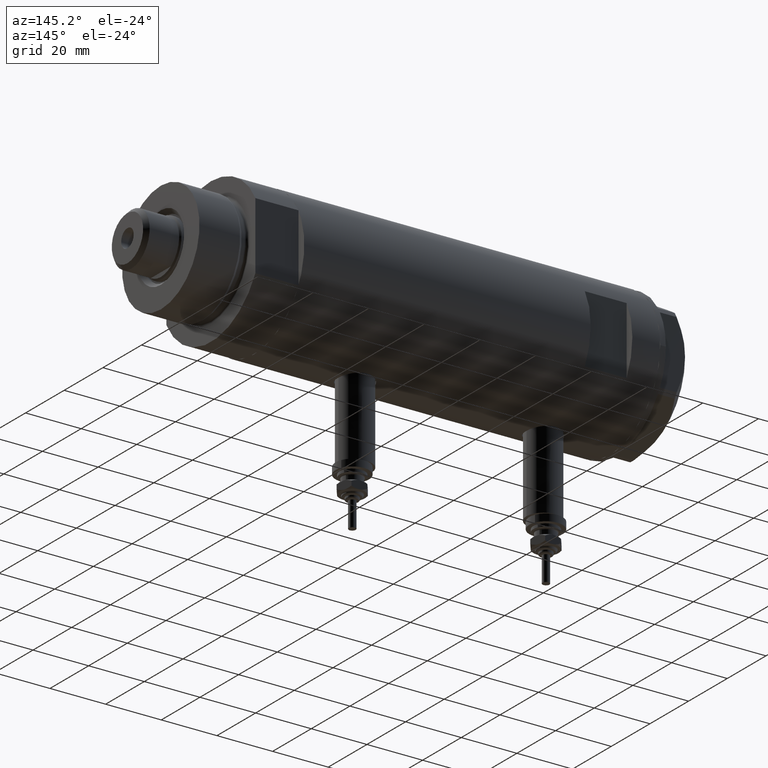
[diagram: clean part render]
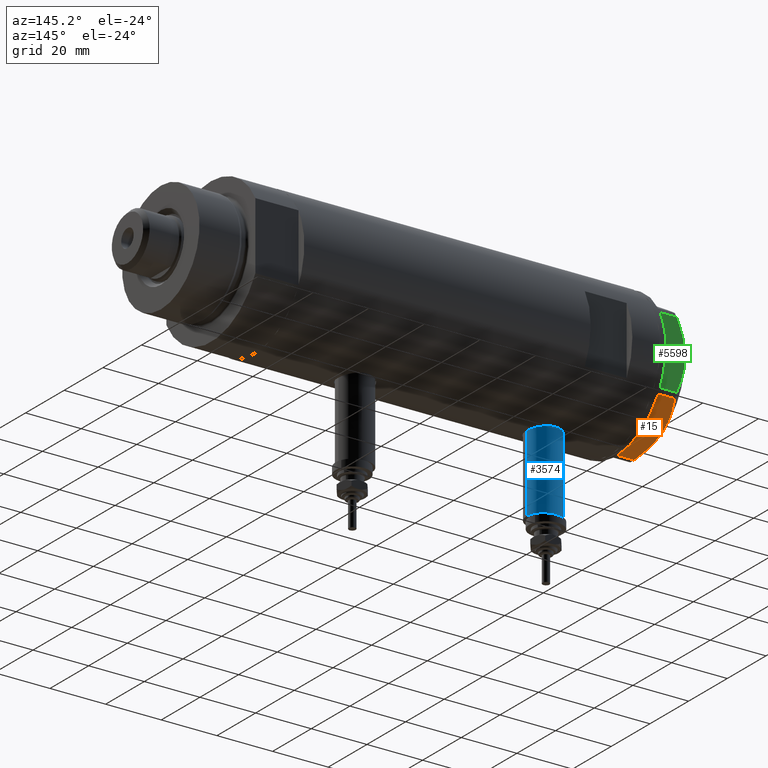
[diagram: same view with three faces highlighted in distinct colors, each labeled with its STEP entity id]
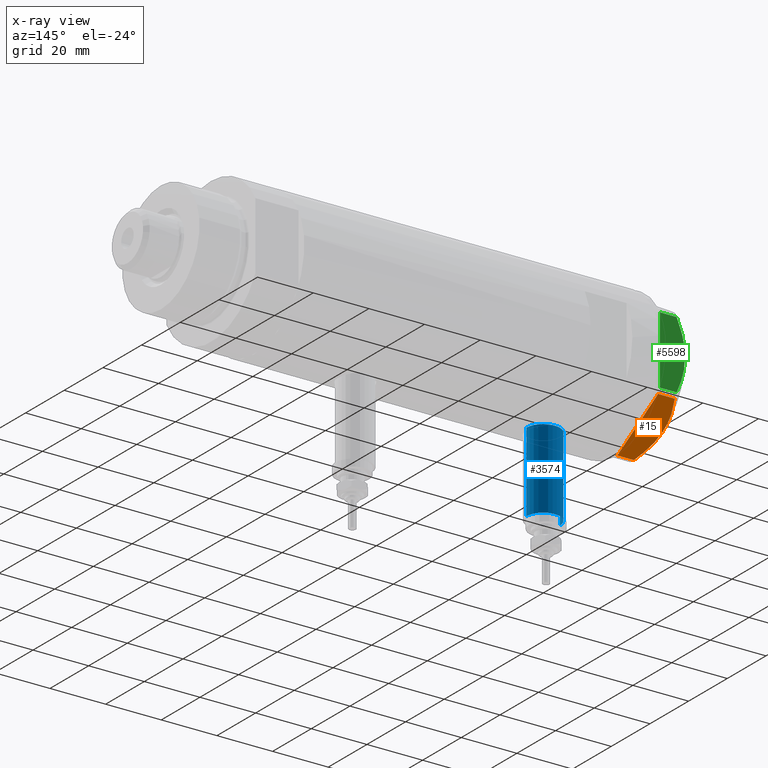
[diagram: x-ray of the same camera — body ghosted, the three highlighted faces saturated]
A machine part, auxiliary view with three faces highlighted in distinct colors.
The next image is the same camera in x-ray (body ghosted, the three faces saturated) — at least one of them is partly hidden behind the body in this view.
Their STEP definitions:

[orange] entity #15 — the highlighted planar face has unit normal (0, -0.5, 0.866).
#15 = ADVANCED_FACE ( 'NONE', ( #3933 ), #1091, .F. ) ;
#45 = CARTESIAN_POINT ( 'NONE',  ( 12.41906678023027588, 19.38796083407295967, 8.981686407609410949 ) ) ;
#71 = VERTEX_POINT ( 'NONE', #1645 ) ;
#114 = LINE ( 'NONE', #4555, #4247 ) ;
#132 = VECTOR ( 'NONE', #3441, 1000.000000000000000 ) ;
#374 = ORIENTED_EDGE ( 'NONE', *, *, #827, .F. ) ;
#384 = CARTESIAN_POINT ( 'NONE',  ( 21.99999999999987210, 13.85640646055121827, 0.000000000000000000 ) ) ;
#593 = CARTESIAN_POINT ( 'NONE',  ( 7.884645426989626671, 22.00591022298560517, 8.707651728476925257 ) ) ;
#650 = CARTESIAN_POINT ( 'NONE',  ( 9.678244919010086988, 20.97037507344920826, 9.000000000000001776 ) ) ;
#827 = EDGE_CURVE ( 'NONE', #71, #4374, #2561, .T. ) ;
#903 = VERTEX_POINT ( 'NONE', #384 ) ;
#1025 = CARTESIAN_POINT ( 'NONE',  ( 22.99999999999981171, 13.27905619136164184, 9.000000000000000000 ) ) ;
#1091 = PLANE ( 'NONE',  #5349 ) ;
#1192 = DIRECTION ( 'NONE',  ( -0.8660254037844415942, 0.4999999999999949485, 0.000000000000000000 ) ) ;
#1196 = CARTESIAN_POINT ( 'NONE',  ( 3.925137811030050994, 24.29193301091819635, 7.397272853991373687 ) ) ;
#1197 = LINE ( 'NONE', #2643, #2993 ) ;
#1428 = CARTESIAN_POINT ( 'NONE',  ( 0.9699484522385816154, 25.99811238272274494, 0.000000000000000000 ) ) ;
#1448 = CARTESIAN_POINT ( 'NONE',  ( 18.67981377008996446, 15.77331687414937278, 7.629374868826049649 ) ) ;
#1569 = ORIENTED_EDGE ( 'NONE', *, *, #5960, .T. ) ;
#1645 = CARTESIAN_POINT ( 'NONE',  ( 11.49999999999990408, 19.91858428704219364, 9.000000000000000000 ) ) ;
#1716 = ORIENTED_EDGE ( 'NONE', *, *, #5358, .T. ) ;
#1925 = CARTESIAN_POINT ( 'NONE',  ( 11.95865151389051917, 19.65378171203322566, 9.000000000000005329 ) ) ;
#1948 = CARTESIAN_POINT ( 'NONE',  ( 22.03005154776138852, 13.83905619136154819, 5.983800287807532037 ) ) ;
#2008 = LINE ( 'NONE', #4465, #2484 ) ;
#2077 = VERTEX_POINT ( 'NONE', #1948 ) ;
#2106 = DIRECTION ( 'NONE',  ( -0.8660254037844415942, 0.4999999999999949485, 0.000000000000000000 ) ) ;
#2120 = LINE ( 'NONE', #6037, #5843 ) ;
#2178 = CARTESIAN_POINT ( 'NONE',  ( 1.799196345396824492, 25.51934588838292228, 6.431317509509382191 ) ) ;
#2339 = VERTEX_POINT ( 'NONE', #2818 ) ;
#2484 = VECTOR ( 'NONE', #2106, 999.9999999999998863 ) ;
#2489 = EDGE_CURVE ( 'NONE', #5829, #903, #114, .T. ) ;
#2561 = B_SPLINE_CURVE_WITH_KNOTS ( 'NONE', 3,
 ( #3084, #650, #593, #4487, #4008, #5019, #1196, #2610, #2178, #2667 ),
 .UNSPECIFIED., .F., .F.,
 ( 4, 2, 2, 2, 4 ),
 ( 0.01376519981810293489, 0.01998941321701561136, 0.02154546656674377961, 0.02310151991647194786, 0.02621362661592828783 ),
 .UNSPECIFIED. ) ;
#2610 = CARTESIAN_POINT ( 'NONE',  ( 2.640413878806739945, 25.03366871902167290, 6.844201024438365089 ) ) ;
#2643 = CARTESIAN_POINT ( 'NONE',  ( 0.9699484522385816154, 25.99811238272274494, 9.000000000000000000 ) ) ;
#2667 = CARTESIAN_POINT ( 'NONE',  ( 0.9699484522385767304, 25.99811238272274849, 5.983800287807627960 ) ) ;
#2818 = CARTESIAN_POINT ( 'NONE',  ( 0.9999999999999297229, 25.98076211353316722, 0.000000000000000000 ) ) ;
#2853 = B_SPLINE_CURVE_WITH_KNOTS ( 'NONE', 3,
 ( #4422, #5381, #1448, #2961, #3911, #3949, #4898, #45, #1925, #5894 ),
 .UNSPECIFIED., .F., .F.,
 ( 4, 2, 2, 2, 4 ),
 ( 0.001228959670438493522, 0.007497079744270714746, 0.01063113978118682655, 0.01219816979964488159, 0.01376519981810293489 ),
 .UNSPECIFIED. ) ;
#2961 = CARTESIAN_POINT ( 'NONE',  ( 16.05322244309623869, 17.28978008384030929, 8.426899937603700153 ) ) ;
#2993 = VECTOR ( 'NONE', #4094, 1000.000000000000000 ) ;
#3023 = LINE ( 'NONE', #4868, #132 ) ;
#3043 = DIRECTION ( 'NONE',  ( -0.4999999999999949485, -0.8660254037844415942, 0.000000000000000000 ) ) ;
#3084 = CARTESIAN_POINT ( 'NONE',  ( 11.49999999999990408, 19.91858428704219364, 9.000000000000000000 ) ) ;
#3290 = ORIENTED_EDGE ( 'NONE', *, *, #6293, .T. ) ;
#3441 = DIRECTION ( 'NONE',  ( 0.000000000000000000, 0.000000000000000000, -1.000000000000000000 ) ) ;
#3706 = VERTEX_POINT ( 'NONE', #1428 ) ;
#3911 = CARTESIAN_POINT ( 'NONE',  ( 15.16323225988329959, 17.80361615569442790, 8.637313967156861949 ) ) ;
#3933 = FACE_OUTER_BOUND ( 'NONE', #4307, .T. ) ;
#3949 = CARTESIAN_POINT ( 'NONE',  ( 13.80210138309697498, 18.58946543380931260, 8.852712638955710034 ) ) ;
#4008 = CARTESIAN_POINT ( 'NONE',  ( 5.229981517798067081, 23.53858114556529912, 7.892128867758392730 ) ) ;
#4089 = CARTESIAN_POINT ( 'NONE',  ( 0.9699484522385767304, 25.99811238272274849, 5.983800287807627960 ) ) ;
#4094 = DIRECTION ( 'NONE',  ( 0.000000000000000000, 0.000000000000000000, 1.000000000000000000 ) ) ;
#4183 = EDGE_CURVE ( 'NONE', #2077, #71, #2853, .T. ) ;
#4247 = VECTOR ( 'NONE', #5418, 999.9999999999998863 ) ;
#4307 = EDGE_LOOP ( 'NONE', ( #6266, #3290, #5099, #1716, #5430, #1569, #374 ) ) ;
#4374 = VERTEX_POINT ( 'NONE', #4089 ) ;
#4376 = EDGE_CURVE ( 'NONE', #2339, #3706, #2120, .T. ) ;
#4422 = CARTESIAN_POINT ( 'NONE',  ( 22.03005154776138852, 13.83905619136154819, 5.983800287807532037 ) ) ;
#4465 = CARTESIAN_POINT ( 'NONE',  ( 22.99999999999981171, 13.27905619136164184, 0.000000000000000000 ) ) ;
#4487 = CARTESIAN_POINT ( 'NONE',  ( 5.671686373602799591, 23.28356272816407824, 8.040681765829278405 ) ) ;
#4488 = CARTESIAN_POINT ( 'NONE',  ( 22.03005154776124286, 13.83905619136163168, 0.000000000000000000 ) ) ;
#4555 = CARTESIAN_POINT ( 'NONE',  ( 22.99999999999981171, 13.27905619136164184, 0.000000000000000000 ) ) ;
#4868 = CARTESIAN_POINT ( 'NONE',  ( 22.03005154776124286, 13.83905619136163168, 9.000000000000000000 ) ) ;
#4898 = CARTESIAN_POINT ( 'NONE',  ( 13.34348161667005073, 18.85424967941157703, 8.907842277728345692 ) ) ;
#4977 = DIRECTION ( 'NONE',  ( 0.8660254037844415942, -0.4999999999999949485, 0.000000000000000000 ) ) ;
#5019 = CARTESIAN_POINT ( 'NONE',  ( 4.357207709416038632, 24.04247733877631532, 7.570552255229681116 ) ) ;
#5099 = ORIENTED_EDGE ( 'NONE', *, *, #2489, .T. ) ;
#5349 = AXIS2_PLACEMENT_3D ( 'NONE', #1025, #3043, #4977 ) ;
#5358 = EDGE_CURVE ( 'NONE', #903, #2339, #2008, .T. ) ;
#5381 = CARTESIAN_POINT ( 'NONE',  ( 20.37350567916420019, 14.79546339452108050, 6.877782426143415506 ) ) ;
#5418 = DIRECTION ( 'NONE',  ( -0.8660254037844415942, 0.4999999999999949485, 0.000000000000000000 ) ) ;
#5430 = ORIENTED_EDGE ( 'NONE', *, *, #4376, .T. ) ;
#5829 = VERTEX_POINT ( 'NONE', #4488 ) ;
#5843 = VECTOR ( 'NONE', #1192, 999.9999999999998863 ) ;
#5894 = CARTESIAN_POINT ( 'NONE',  ( 11.49999999999990408, 19.91858428704219364, 9.000000000000000000 ) ) ;
#5960 = EDGE_CURVE ( 'NONE', #3706, #4374, #1197, .T. ) ;
#6037 = CARTESIAN_POINT ( 'NONE',  ( 22.99999999999981171, 13.27905619136164184, 0.000000000000000000 ) ) ;
#6266 = ORIENTED_EDGE ( 'NONE', *, *, #4183, .F. ) ;
#6293 = EDGE_CURVE ( 'NONE', #2077, #5829, #3023, .T. ) ;

[blue] entity #3574 — the highlighted cylindrical surface (edge-blend (fillet) strip) has radius 6 mm, axis along (0, 0, 1).
#70 = CARTESIAN_POINT ( 'NONE',  ( -24.80000000000000426, 0.000000000000000000, 33.95000000000000995 ) ) ;
#139 = VECTOR ( 'NONE', #956, 1000.000000000000000 ) ;
#141 = EDGE_CURVE ( 'NONE', #409, #4563, #4141, .T. ) ;
#270 = FACE_OUTER_BOUND ( 'NONE', #5875, .T. ) ;
#409 = VERTEX_POINT ( 'NONE', #5308 ) ;
#422 = CARTESIAN_POINT ( 'NONE',  ( -53.40000000000000568, 0.000000000000000000, 39.95000000000000284 ) ) ;
#720 = EDGE_CURVE ( 'NONE', #5284, #409, #3026, .T. ) ;
#956 = DIRECTION ( 'NONE',  ( 1.000000000000000000, -0.000000000000000000, -0.000000000000000000 ) ) ;
#1378 = VECTOR ( 'NONE', #3134, 1000.000000000000000 ) ;
#1662 = CARTESIAN_POINT ( 'NONE',  ( -24.80000000000000426, 0.000000000000000000, 39.95000000000000284 ) ) ;
#1683 = AXIS2_PLACEMENT_3D ( 'NONE', #422, #2388, #3628 ) ;
#2096 = CARTESIAN_POINT ( 'NONE',  ( -24.80000000000000426, 7.347880794884108889E-16, 45.95000000000000284 ) ) ;
#2227 = DIRECTION ( 'NONE',  ( 1.000000000000000000, -0.000000000000000000, -0.000000000000000000 ) ) ;
#2264 = ORIENTED_EDGE ( 'NONE', *, *, #4236, .T. ) ;
#2297 = CARTESIAN_POINT ( 'NONE',  ( -53.40000000000000568, 7.347880794884108889E-16, 45.95000000000000284 ) ) ;
#2384 = CIRCLE ( 'NONE', #5532, 5.999999999999998224 ) ;
#2388 = DIRECTION ( 'NONE',  ( -1.000000000000000000, 0.000000000000000000, 0.000000000000000000 ) ) ;
#2589 = DIRECTION ( 'NONE',  ( 0.000000000000000000, 0.000000000000000000, -1.000000000000000000 ) ) ;
#2715 = CARTESIAN_POINT ( 'NONE',  ( -53.40000000000000568, 0.000000000000000000, 39.95000000000000284 ) ) ;
#3026 = CIRCLE ( 'NONE', #1683, 5.999999999999998224 ) ;
#3075 = ORIENTED_EDGE ( 'NONE', *, *, #720, .F. ) ;
#3134 = DIRECTION ( 'NONE',  ( 1.000000000000000000, -0.000000000000000000, -0.000000000000000000 ) ) ;
#3574 = ADVANCED_FACE ( 'NONE', ( #270 ), #4648, .T. ) ;
#3590 = DIRECTION ( 'NONE',  ( 0.000000000000000000, 0.000000000000000000, 1.000000000000000000 ) ) ;
#3622 = DIRECTION ( 'NONE',  ( -1.000000000000000000, 0.000000000000000000, 0.000000000000000000 ) ) ;
#3628 = DIRECTION ( 'NONE',  ( 0.000000000000000000, 0.000000000000000000, 1.000000000000000000 ) ) ;
#3830 = LINE ( 'NONE', #6224, #139 ) ;
#4141 = LINE ( 'NONE', #4649, #1378 ) ;
#4236 = EDGE_CURVE ( 'NONE', #5918, #4563, #2384, .T. ) ;
#4563 = VERTEX_POINT ( 'NONE', #70 ) ;
#4648 = CYLINDRICAL_SURFACE ( 'NONE', #5427, 5.999999999999998224 ) ;
#4649 = CARTESIAN_POINT ( 'NONE',  ( -53.40000000000000568, 0.000000000000000000, 33.95000000000000995 ) ) ;
#4814 = ORIENTED_EDGE ( 'NONE', *, *, #141, .F. ) ;
#5177 = EDGE_CURVE ( 'NONE', #5284, #5918, #3830, .T. ) ;
#5200 = ORIENTED_EDGE ( 'NONE', *, *, #5177, .T. ) ;
#5284 = VERTEX_POINT ( 'NONE', #2297 ) ;
#5308 = CARTESIAN_POINT ( 'NONE',  ( -53.40000000000000568, 0.000000000000000000, 33.95000000000000995 ) ) ;
#5427 = AXIS2_PLACEMENT_3D ( 'NONE', #2715, #2227, #2589 ) ;
#5532 = AXIS2_PLACEMENT_3D ( 'NONE', #1662, #3622, #3590 ) ;
#5875 = EDGE_LOOP ( 'NONE', ( #3075, #5200, #2264, #4814 ) ) ;
#5918 = VERTEX_POINT ( 'NONE', #2096 ) ;
#6224 = CARTESIAN_POINT ( 'NONE',  ( -53.40000000000000568, 7.347880794884112834E-16, 45.95000000000000284 ) ) ;

[green] entity #5598 — the highlighted planar face has unit normal (0, -1, 0).
#146 = CARTESIAN_POINT ( 'NONE',  ( 22.99999999999997513, -2.122900714017905699, 9.000000000000095923 ) ) ;
#262 = CARTESIAN_POINT ( 'NONE',  ( 22.99999999999982592, 12.12435565298247653, 0.000000000000000000 ) ) ;
#324 = EDGE_CURVE ( 'NONE', #4682, #3139, #591, .T. ) ;
#337 = DIRECTION ( 'NONE',  ( -1.032024811306395780E-14, 1.000000000000000000, 0.000000000000000000 ) ) ;
#421 = CARTESIAN_POINT ( 'NONE',  ( 22.99999999999995026, 2.373657066004705010E-13, 9.000000000000000000 ) ) ;
#590 = CARTESIAN_POINT ( 'NONE',  ( 22.99999999999992184, 2.643615312305318099, 8.854304560636265364 ) ) ;
#591 = LINE ( 'NONE', #5923, #1885 ) ;
#648 = CARTESIAN_POINT ( 'NONE',  ( 22.99999999999983658, 10.22738952213810926, 6.832470313674774864 ) ) ;
#656 = CARTESIAN_POINT ( 'NONE',  ( 23.00000000000002132, -6.734330413511252722, 8.039389741252669808 ) ) ;
#749 = CARTESIAN_POINT ( 'NONE',  ( 23.00000000000008527, -13.27905619136115867, 9.000000000000000000 ) ) ;
#786 = B_SPLINE_CURVE_WITH_KNOTS ( 'NONE', 3,
 ( #5504, #1135, #4049, #5024, #3089, #1615, #656, #4522, #146, #3768 ),
 .UNSPECIFIED., .F., .F.,
 ( 4, 2, 2, 2, 4 ),
 ( 0.03516523594057417712, 0.03831677594541235687, 0.03989254594783144675, 0.04146831595025053663, 0.04777139595992689614 ),
 .UNSPECIFIED. ) ;
#899 = VERTEX_POINT ( 'NONE', #5656 ) ;
#954 = AXIS2_PLACEMENT_3D ( 'NONE', #749, #6024, #2709 ) ;
#1022 = VERTEX_POINT ( 'NONE', #6138 ) ;
#1135 = CARTESIAN_POINT ( 'NONE',  ( 23.00000000000006395, -11.20825071633898240, 6.428173306378455187 ) ) ;
#1215 = CARTESIAN_POINT ( 'NONE',  ( 22.99999999999984368, 11.20155944044832630, 6.421102682632754188 ) ) ;
#1372 = CARTESIAN_POINT ( 'NONE',  ( 23.00000000000008527, -13.27905619136115867, 0.000000000000000000 ) ) ;
#1463 = ORIENTED_EDGE ( 'NONE', *, *, #3270, .T. ) ;
#1507 = VERTEX_POINT ( 'NONE', #262 ) ;
#1579 = CARTESIAN_POINT ( 'NONE',  ( 22.99999999999990763, 4.203926054642127319, 8.641681223122510858 ) ) ;
#1615 = CARTESIAN_POINT ( 'NONE',  ( 23.00000000000002842, -7.239756182922028493, 7.892186063422852449 ) ) ;
#1675 = FACE_OUTER_BOUND ( 'NONE', #5798, .T. ) ;
#1697 = CARTESIAN_POINT ( 'NONE',  ( 22.99999999999982236, 12.15905619136164262, 5.983800287807618190 ) ) ;
#1847 = VECTOR ( 'NONE', #3304, 1000.000000000000000 ) ;
#1850 = EDGE_CURVE ( 'NONE', #3139, #1022, #2988, .T. ) ;
#1885 = VECTOR ( 'NONE', #3475, 1000.000000000000000 ) ;
#1895 = EDGE_CURVE ( 'NONE', #2806, #899, #3654, .T. ) ;
#2576 = CARTESIAN_POINT ( 'NONE',  ( 23.00000000000008527, -13.27905619136115867, 0.000000000000000000 ) ) ;
#2629 = CARTESIAN_POINT ( 'NONE',  ( 23.00000000000007461, -12.15905619136115412, 5.983800287807623519 ) ) ;
#2709 = DIRECTION ( 'NONE',  ( 1.032024811306395780E-14, -1.000000000000000000, 0.000000000000000000 ) ) ;
#2791 = LINE ( 'NONE', #3811, #1847 ) ;
#2806 = VERTEX_POINT ( 'NONE', #421 ) ;
#2822 = ORIENTED_EDGE ( 'NONE', *, *, #6069, .T. ) ;
#2963 = CARTESIAN_POINT ( 'NONE',  ( 22.99999999999993960, 1.063773509315896648, 8.981438083606837708 ) ) ;
#2988 = LINE ( 'NONE', #2576, #5868 ) ;
#2996 = VERTEX_POINT ( 'NONE', #5474 ) ;
#3082 = CARTESIAN_POINT ( 'NONE',  ( 22.99999999999986500, 8.252113629125430450, 7.581642062680224115 ) ) ;
#3089 = CARTESIAN_POINT ( 'NONE',  ( 23.00000000000003197, -8.246028007352183664, 7.571131808646910599 ) ) ;
#3139 = VERTEX_POINT ( 'NONE', #5054 ) ;
#3270 = EDGE_CURVE ( 'NONE', #1507, #2996, #2791, .T. ) ;
#3275 = LINE ( 'NONE', #4325, #3908 ) ;
#3304 = DIRECTION ( 'NONE',  ( -1.032024811306395780E-14, 1.000000000000000000, 0.000000000000000000 ) ) ;
#3354 = ORIENTED_EDGE ( 'NONE', *, *, #1850, .T. ) ;
#3421 = ORIENTED_EDGE ( 'NONE', *, *, #4964, .F. ) ;
#3475 = DIRECTION ( 'NONE',  ( 0.000000000000000000, 0.000000000000000000, -1.000000000000000000 ) ) ;
#3540 = CARTESIAN_POINT ( 'NONE',  ( 22.99999999999990052, 5.228918809624284236, 8.433337033849852560 ) ) ;
#3654 = B_SPLINE_CURVE_WITH_KNOTS ( 'NONE', 3,
 ( #5953, #4962, #2963, #4927, #590, #1579, #3540, #5498, #3082, #5017, #648, #1215, #4180, #1697 ),
 .UNSPECIFIED., .F., .F.,
 ( 4, 2, 2, 2, 2, 2, 4 ),
 ( 0.04777139595992689614, 0.04934380568070229067, 0.05091621540147768521, 0.05406103484302848122, 0.05720585428457927030, 0.05877826400535466483, 0.06035067372613005937 ),
 .UNSPECIFIED. ) ;
#3768 = CARTESIAN_POINT ( 'NONE',  ( 22.99999999999995026, 2.373657066004705010E-13, 9.000000000000000000 ) ) ;
#3811 = CARTESIAN_POINT ( 'NONE',  ( 23.00000000000008527, -13.27905619136115867, 0.000000000000000000 ) ) ;
#3908 = VECTOR ( 'NONE', #4256, 1000.000000000000000 ) ;
#4049 = CARTESIAN_POINT ( 'NONE',  ( 23.00000000000005684, -10.23890159976104641, 6.840812428290920622 ) ) ;
#4180 = CARTESIAN_POINT ( 'NONE',  ( 22.99999999999982947, 11.68282849742352525, 6.206372352695418648 ) ) ;
#4256 = DIRECTION ( 'NONE',  ( 0.000000000000000000, 0.000000000000000000, 1.000000000000000000 ) ) ;
#4271 = ORIENTED_EDGE ( 'NONE', *, *, #1895, .F. ) ;
#4325 = CARTESIAN_POINT ( 'NONE',  ( 22.99999999999982236, 12.15905619136163729, 9.000000000000000000 ) ) ;
#4522 = CARTESIAN_POINT ( 'NONE',  ( 22.99999999999999289, -4.194757081058811288, 8.703000351525204792 ) ) ;
#4626 = ORIENTED_EDGE ( 'NONE', *, *, #324, .T. ) ;
#4682 = VERTEX_POINT ( 'NONE', #2629 ) ;
#4753 = LINE ( 'NONE', #1372, #5634 ) ;
#4927 = CARTESIAN_POINT ( 'NONE',  ( 22.99999999999992539, 2.119709279062085727, 8.908535212173203988 ) ) ;
#4962 = CARTESIAN_POINT ( 'NONE',  ( 22.99999999999994671, 0.5295934231899334099, 9.000000000000095923 ) ) ;
#4964 = EDGE_CURVE ( 'NONE', #4682, #2806, #786, .T. ) ;
#4983 = ORIENTED_EDGE ( 'NONE', *, *, #5045, .T. ) ;
#5017 = CARTESIAN_POINT ( 'NONE',  ( 22.99999999999985079, 9.734726261263462632, 7.028924700095659617 ) ) ;
#5024 = CARTESIAN_POINT ( 'NONE',  ( 23.00000000000004263, -8.748091966971204059, 7.396818978284578350 ) ) ;
#5045 = EDGE_CURVE ( 'NONE', #1022, #1507, #4753, .T. ) ;
#5054 = CARTESIAN_POINT ( 'NONE',  ( 23.00000000000007461, -12.15905619136115590, 0.000000000000000000 ) ) ;
#5474 = CARTESIAN_POINT ( 'NONE',  ( 22.99999999999982236, 12.15905619136163729, 0.000000000000000000 ) ) ;
#5498 = CARTESIAN_POINT ( 'NONE',  ( 22.99999999999987921, 7.253003311474552461, 7.903276810347635184 ) ) ;
#5504 = CARTESIAN_POINT ( 'NONE',  ( 23.00000000000007461, -12.15905619136115412, 5.983800287807623519 ) ) ;
#5572 = PLANE ( 'NONE',  #954 ) ;
#5598 = ADVANCED_FACE ( 'NONE', ( #1675 ), #5572, .F. ) ;
#5634 = VECTOR ( 'NONE', #337, 1000.000000000000000 ) ;
#5656 = CARTESIAN_POINT ( 'NONE',  ( 22.99999999999982236, 12.15905619136164262, 5.983800287807618190 ) ) ;
#5798 = EDGE_LOOP ( 'NONE', ( #3421, #4626, #3354, #4983, #1463, #2822, #4271 ) ) ;
#5868 = VECTOR ( 'NONE', #5922, 1000.000000000000000 ) ;
#5922 = DIRECTION ( 'NONE',  ( -1.032024811306395780E-14, 1.000000000000000000, 0.000000000000000000 ) ) ;
#5923 = CARTESIAN_POINT ( 'NONE',  ( 23.00000000000007461, -12.15905619136115590, 9.000000000000000000 ) ) ;
#5953 = CARTESIAN_POINT ( 'NONE',  ( 22.99999999999995026, 2.373657066004705010E-13, 9.000000000000000000 ) ) ;
#6024 = DIRECTION ( 'NONE',  ( -1.000000000000000000, -1.032024811306395780E-14, 0.000000000000000000 ) ) ;
#6069 = EDGE_CURVE ( 'NONE', #2996, #899, #3275, .T. ) ;
#6138 = CARTESIAN_POINT ( 'NONE',  ( 23.00000000000007461, -12.12435565298200224, 0.000000000000000000 ) ) ;